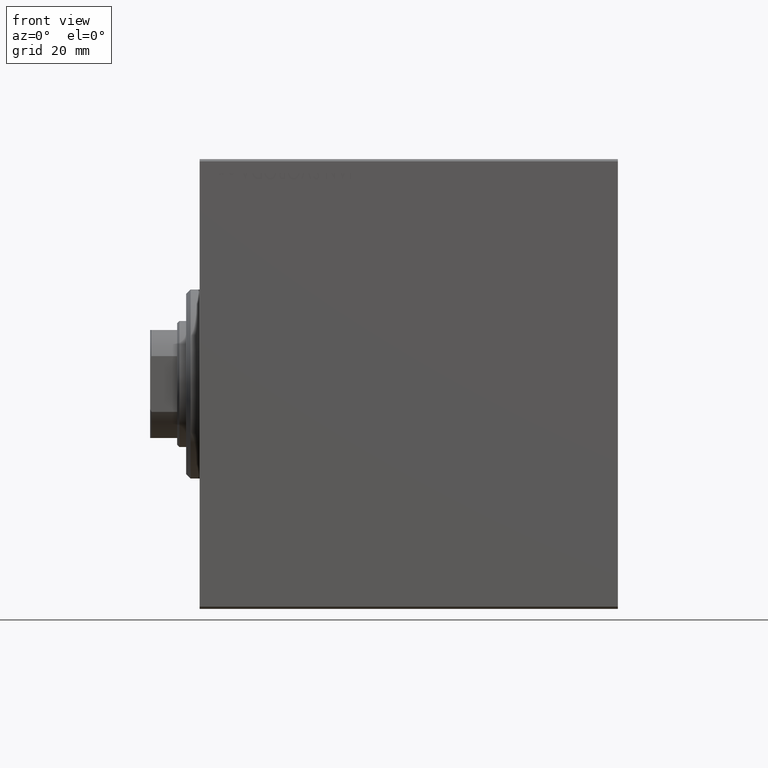
[diagram: clean part render]
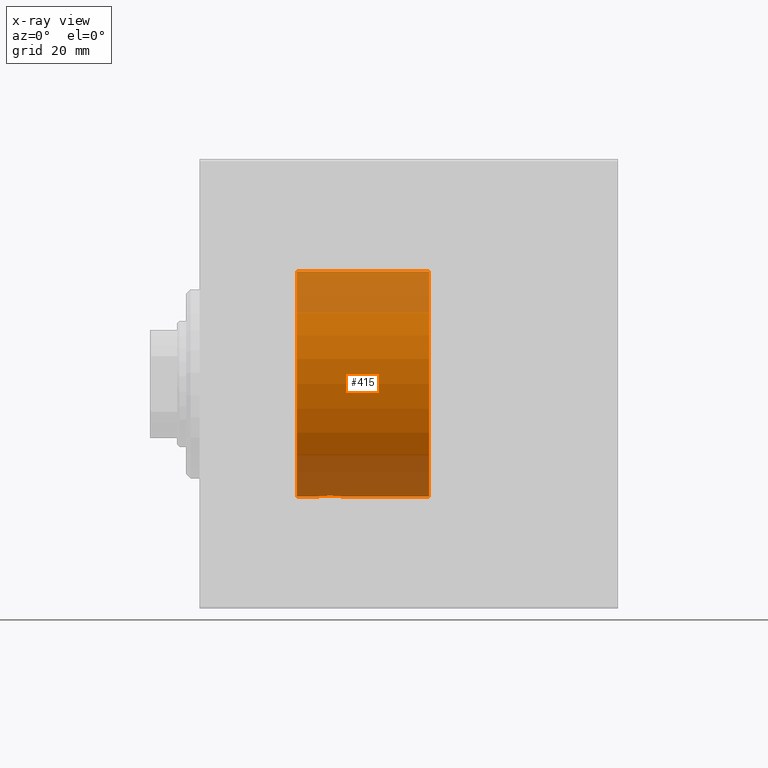
[diagram: x-ray — body ghosted, one internal face saturated and labeled with its STEP entity id]
A machine part, front view, then the same camera in x-ray: the body is ghosted and one INTERNAL B-rep face — a face not visible from any outside direction — is saturated and labeled: STEP entity #415.
In plain terms, the highlighted cylindrical surface (partial cylindrical patch) has radius 25 mm, axis along (-1, -0, -0).
Its self-contained STEP definition (entity closure, byte-faithful):
#415 = ADVANCED_FACE ( 'NONE', ( #28944 ), #42612, .F. ) ;
#1475 = EDGE_CURVE ( 'NONE', #9145, #24055, #15240, .T. ) ;
#1798 = CARTESIAN_POINT ( 'NONE',  ( 31.24760251019550950, -1.106703319666878071, -24.97594585958023572 ) ) ;
#1998 = EDGE_CURVE ( 'NONE', #6849, #3324, #3987, .T. ) ;
#2536 = ORIENTED_EDGE ( 'NONE', *, *, #1998, .F. ) ;
#3324 = VERTEX_POINT ( 'NONE', #41400 ) ;
#3987 = LINE ( 'NONE', #34998, #14166 ) ;
#5114 = DIRECTION ( 'NONE',  ( -1.000000000000000000, -0.000000000000000000, -0.000000000000000000 ) ) ;
#5400 = CARTESIAN_POINT ( 'NONE',  ( 28.67403429960540606, -2.484007091859761207, -24.87630842367763506 ) ) ;
#5553 = EDGE_CURVE ( 'NONE', #9410, #9145, #9660, .T. ) ;
#6753 = CARTESIAN_POINT ( 'NONE',  ( 21.60000000000000142, 3.061616997868383043E-15, -25.00000000000000000 ) ) ;
#6849 = VERTEX_POINT ( 'NONE', #41302 ) ;
#6877 = VECTOR ( 'NONE', #21761, 1000.000000000000000 ) ;
#7271 = ORIENTED_EDGE ( 'NONE', *, *, #41639, .T. ) ;
#8576 = CARTESIAN_POINT ( 'NONE',  ( 27.11814045851354038, -1.653834020452936038, -24.94550385189584674 ) ) ;
#8775 = CARTESIAN_POINT ( 'NONE',  ( 28.83676410361457343, -2.500125740978191846, -24.87467329022545925 ) ) ;
#9024 = CARTESIAN_POINT ( 'NONE',  ( 26.50000000000000000, -0.3305063766663763336, -25.00000000000000355 ) ) ;
#9145 = VERTEX_POINT ( 'NONE', #21943 ) ;
#9232 = CARTESIAN_POINT ( 'NONE',  ( 30.52536182243081342, -1.987446652080259391, -24.92104239223420592 ) ) ;
#9304 = CARTESIAN_POINT ( 'NONE',  ( 51.00000000000000711, 0.000000000000000000, 0.000000000000000000 ) ) ;
#9410 = VERTEX_POINT ( 'NONE', #20307 ) ;
#9660 = LINE ( 'NONE', #16852, #24326 ) ;
#10241 = AXIS2_PLACEMENT_3D ( 'NONE', #9304, #43412, #22553 ) ;
#12146 = CARTESIAN_POINT ( 'NONE',  ( 29.64904390169096970, -2.419770561643905804, -24.88263927071751169 ) ) ;
#12593 = CARTESIAN_POINT ( 'NONE',  ( 31.17011290280925451, -1.252049606094333578, -24.96900299967627745 ) ) ;
#12825 = CARTESIAN_POINT ( 'NONE',  ( 30.25383195424502958, -2.169003991399867104, -24.90589728951138326 ) ) ;
#13180 = CIRCLE ( 'NONE', #38976, 25.00000000000000000 ) ;
#14166 = VECTOR ( 'NONE', #21729, 1000.000000000000000 ) ;
#15044 = CARTESIAN_POINT ( 'NONE',  ( 51.00000000000000711, 3.061616997868383043E-15, -25.00000000000000000 ) ) ;
#15240 = B_SPLINE_CURVE_WITH_KNOTS ( 'NONE', 3,
 ( #15978, #19784, #29894, #32588, #33259, #1798, #12593, #43564, #26291, #39985, #9232, #12825, #32805, #22924, #12146, #39539, #36182, #8775, #5400, #43357, #29687, #39559, #39342, #22721, #15777, #8576, #15996, #40230, #26310, #36427, #9024, #29912 ),
 .UNSPECIFIED., .F., .F.,
 ( 4, 2, 2, 2, 2, 2, 2, 2, 2, 2, 2, 2, 2, 2, 2, 4 ),
 ( 0.007821024441662299820, 0.008309723826317907958, 0.008798423210973517830, 0.009287122595629122498, 0.009775821980284727167, 0.01026452136494033184, 0.01075322074959593650, 0.01124192013425154291, 0.01173061951890714757, 0.01221931890356275051, 0.01270801828821835691, 0.01319671767287396158, 0.01368541705752956625, 0.01417411644218517092, 0.01466281582684077732, 0.01564021459615199186 ),
 .UNSPECIFIED. ) ;
#15777 = CARTESIAN_POINT ( 'NONE',  ( 27.34878866440888245, -1.884161199660614017, -24.92916496727982434 ) ) ;
#15978 = CARTESIAN_POINT ( 'NONE',  ( 31.50000000000000000, 3.061616978460191625E-15, -25.00000000000000000 ) ) ;
#15996 = CARTESIAN_POINT ( 'NONE',  ( 27.01461966282905180, -1.528152964861308138, -24.95362559291378801 ) ) ;
#16852 = CARTESIAN_POINT ( 'NONE',  ( 51.00000000000000711, 3.061616997868383043E-15, -25.00000000000000000 ) ) ;
#18641 = EDGE_LOOP ( 'NONE', ( #20481, #40007, #43660, #29224, #7271, #2536 ) ) ;
#18831 = DIRECTION ( 'NONE',  ( 0.000000000000000000, 0.000000000000000000, 1.000000000000000000 ) ) ;
#19458 = DIRECTION ( 'NONE',  ( 0.000000000000000000, 0.000000000000000000, 1.000000000000000000 ) ) ;
#19784 = CARTESIAN_POINT ( 'NONE',  ( 31.50000000000000000, -0.1631750940176180942, -25.00000000000001066 ) ) ;
#20307 = CARTESIAN_POINT ( 'NONE',  ( 51.00000000000000711, 3.061616997868383043E-15, -25.00000000000000000 ) ) ;
#20481 = ORIENTED_EDGE ( 'NONE', *, *, #34121, .F. ) ;
#21729 = DIRECTION ( 'NONE',  ( -1.000000000000000000, -0.000000000000000000, -0.000000000000000000 ) ) ;
#21761 = DIRECTION ( 'NONE',  ( -1.000000000000000000, -0.000000000000000000, -0.000000000000000000 ) ) ;
#21943 = CARTESIAN_POINT ( 'NONE',  ( 31.50000000000000000, 3.061616978460191625E-15, -25.00000000000000000 ) ) ;
#22198 = CARTESIAN_POINT ( 'NONE',  ( 51.00000000000000711, 0.000000000000000000, 0.000000000000000000 ) ) ;
#22553 = DIRECTION ( 'NONE',  ( 0.000000000000000000, 0.000000000000000000, 1.000000000000000000 ) ) ;
#22721 = CARTESIAN_POINT ( 'NONE',  ( 27.47743225659810307, -1.989585286700244149, -24.92087098724765681 ) ) ;
#22758 = AXIS2_PLACEMENT_3D ( 'NONE', #22198, #5114, #18831 ) ;
#22924 = CARTESIAN_POINT ( 'NONE',  ( 29.80788342405805835, -2.371528299825741648, -24.88734287464370709 ) ) ;
#24055 = VERTEX_POINT ( 'NONE', #36045 ) ;
#24326 = VECTOR ( 'NONE', #30543, 1000.000000000000000 ) ;
#26291 = CARTESIAN_POINT ( 'NONE',  ( 30.88412382786470900, -1.651251241585097063, -24.94567559498348075 ) ) ;
#26310 = CARTESIAN_POINT ( 'NONE',  ( 26.75393620905933290, -1.109818057797416158, -24.97580694515542277 ) ) ;
#26866 = DIRECTION ( 'NONE',  ( -1.000000000000000000, 0.000000000000000000, 0.000000000000000000 ) ) ;
#28944 = FACE_OUTER_BOUND ( 'NONE', #18641, .T. ) ;
#29224 = ORIENTED_EDGE ( 'NONE', *, *, #39220, .T. ) ;
#29599 = CIRCLE ( 'NONE', #10241, 25.00000000000000000 ) ;
#29687 = CARTESIAN_POINT ( 'NONE',  ( 28.19564339083698457, -2.372734907014171224, -24.88722742718433523 ) ) ;
#29894 = CARTESIAN_POINT ( 'NONE',  ( 31.48417840057656747, -0.3254210271412200650, -24.99840249400844527 ) ) ;
#29912 = CARTESIAN_POINT ( 'NONE',  ( 26.50000000000000355, -4.113702575029848227E-15, -25.00000000000000000 ) ) ;
#30012 = CARTESIAN_POINT ( 'NONE',  ( 21.60000000000000142, 0.000000000000000000, 0.000000000000000000 ) ) ;
#30543 = DIRECTION ( 'NONE',  ( -1.000000000000000000, -0.000000000000000000, -0.000000000000000000 ) ) ;
#32318 = LINE ( 'NONE', #15044, #6877 ) ;
#32588 = CARTESIAN_POINT ( 'NONE',  ( 31.42014909220930363, -0.6480119923854200659, -24.99212088949392196 ) ) ;
#32805 = CARTESIAN_POINT ( 'NONE',  ( 30.11036796508864910, -2.245863995402895164, -24.89899750494197406 ) ) ;
#33259 = CARTESIAN_POINT ( 'NONE',  ( 31.37215969408607563, -0.8058335233485418581, -24.98746277938382931 ) ) ;
#33676 = VERTEX_POINT ( 'NONE', #6753 ) ;
#34121 = EDGE_CURVE ( 'NONE', #9410, #6849, #29599, .T. ) ;
#34998 = CARTESIAN_POINT ( 'NONE',  ( 51.00000000000000711, 0.000000000000000000, 25.00000000000000000 ) ) ;
#36045 = CARTESIAN_POINT ( 'NONE',  ( 26.50000000000000355, -4.113702575029848227E-15, -25.00000000000000000 ) ) ;
#36182 = CARTESIAN_POINT ( 'NONE',  ( 29.16706495178060621, -2.499872792855077464, -24.87469871246082320 ) ) ;
#36427 = CARTESIAN_POINT ( 'NONE',  ( 26.56650644760252789, -0.6588655613945878509, -24.99312727339970763 ) ) ;
#38976 = AXIS2_PLACEMENT_3D ( 'NONE', #30012, #26866, #19458 ) ;
#39220 = EDGE_CURVE ( 'NONE', #24055, #33676, #32318, .T. ) ;
#39342 = CARTESIAN_POINT ( 'NONE',  ( 27.74915976075945068, -2.170728182476717283, -24.90574631553725027 ) ) ;
#39539 = CARTESIAN_POINT ( 'NONE',  ( 29.32947680114268252, -2.483544361357266084, -24.87635491893501083 ) ) ;
#39559 = CARTESIAN_POINT ( 'NONE',  ( 27.89276154161591137, -2.247417070759893498, -24.89885693081945917 ) ) ;
#39985 = CARTESIAN_POINT ( 'NONE',  ( 30.65383336149337978, -1.881857718844712091, -24.92933960374833546 ) ) ;
#40007 = ORIENTED_EDGE ( 'NONE', *, *, #5553, .T. ) ;
#40230 = CARTESIAN_POINT ( 'NONE',  ( 26.83172358506043054, -1.255214705003178555, -24.96884293994578030 ) ) ;
#41302 = CARTESIAN_POINT ( 'NONE',  ( 51.00000000000000711, 0.000000000000000000, 25.00000000000000000 ) ) ;
#41400 = CARTESIAN_POINT ( 'NONE',  ( 21.60000000000000142, 0.000000000000000000, 25.00000000000000000 ) ) ;
#41639 = EDGE_CURVE ( 'NONE', #33676, #3324, #13180, .T. ) ;
#42612 = CYLINDRICAL_SURFACE ( 'NONE', #22758, 25.00000000000000000 ) ;
#43357 = CARTESIAN_POINT ( 'NONE',  ( 28.35439333851368460, -2.420689345803756165, -24.88254961038873958 ) ) ;
#43412 = DIRECTION ( 'NONE',  ( -1.000000000000000000, 0.000000000000000000, 0.000000000000000000 ) ) ;
#43564 = CARTESIAN_POINT ( 'NONE',  ( 30.98749815834398902, -1.525407911884361312, -24.95379469572362652 ) ) ;
#43660 = ORIENTED_EDGE ( 'NONE', *, *, #1475, .T. ) ;